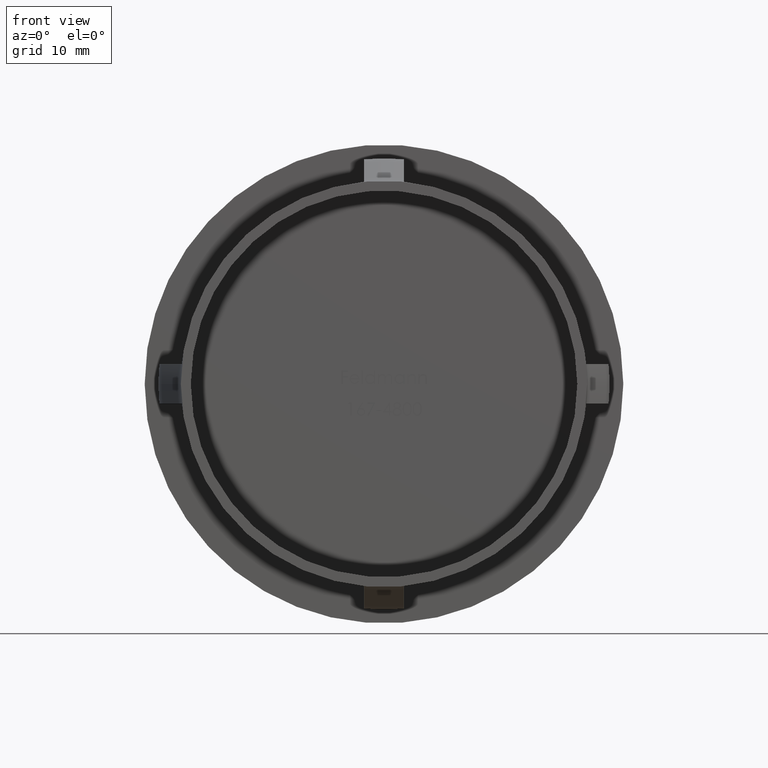
[diagram: clean part render]
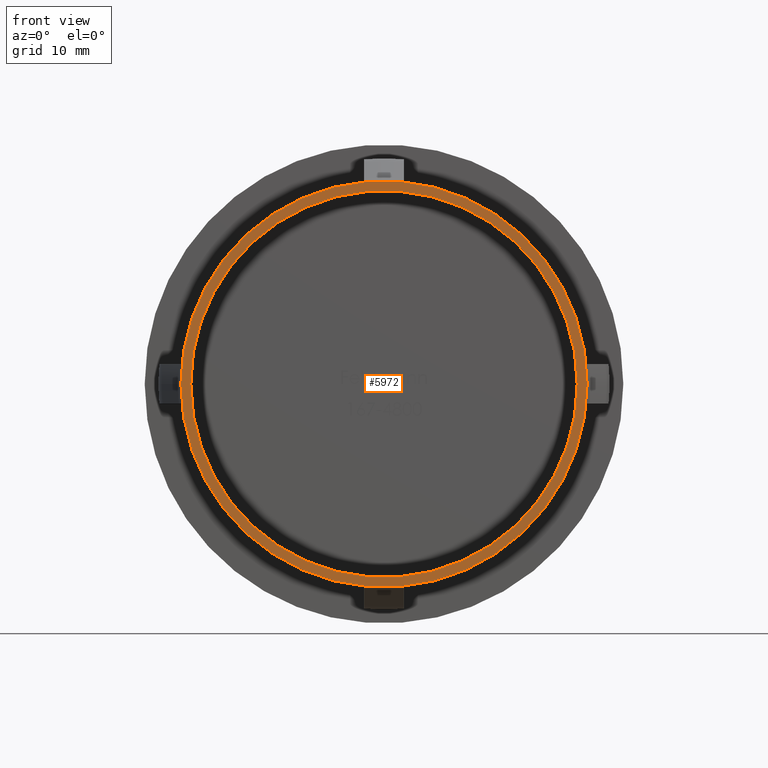
[diagram: same view with one face highlighted and labeled with its STEP entity id]
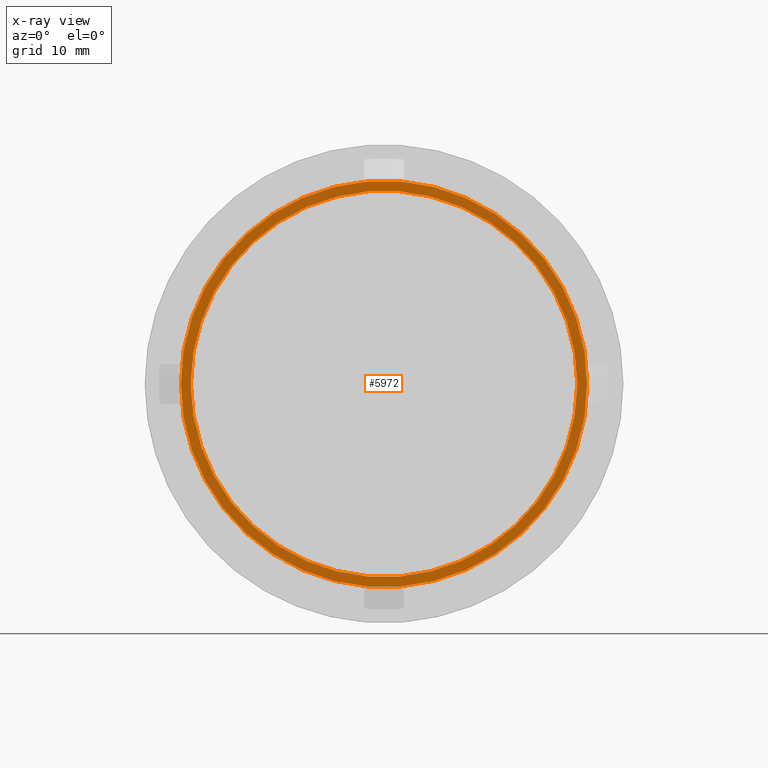
[diagram: x-ray of the same camera — body ghosted, the highlighted face saturated]
A machine part, front view. The second image highlights one B-rep face of the part: STEP entity #5972.
The next image is the same camera in x-ray: the body ghosted, the highlighted face saturated — about 0% of this face is hidden behind the body in this view.
In plain terms, the highlighted planar face has unit normal (-0, 1, 0).
Its self-contained STEP definition (entity closure, byte-faithful):
#326 = DIRECTION ( 'NONE',  ( -1.714505518806297100E-016, 1.000000000000000000, -0.0000000000000000000 ) ) ;
#674 = CARTESIAN_POINT ( 'NONE',  ( 19.50000000000000400, -1.261611902813349400E-016, 2.388061258337339300E-015 ) ) ;
#960 = CARTESIAN_POINT ( 'NONE',  ( 19.50000000000000400, -8.572527594031492900E-017, 0.0000000000000000000 ) ) ;
#1007 = DIRECTION ( 'NONE',  ( -1.000000000000000000, -1.714505518806297600E-016, 0.0000000000000000000 ) ) ;
#1133 = AXIS2_PLACEMENT_3D ( 'NONE', #2758, #6013, #10841 ) ;
#2023 = VERTEX_POINT ( 'NONE', #674 ) ;
#2199 = PLANE ( 'NONE',  #4953 ) ;
#2758 = CARTESIAN_POINT ( 'NONE',  ( 4.589976203204287100E-015, -3.469446951953614200E-015, 0.0000000000000000000 ) ) ;
#3082 = CIRCLE ( 'NONE', #1133, 19.50000000000000000 ) ;
#3129 = CARTESIAN_POINT ( 'NONE',  ( 20.50000000000000400, 4.528936159929513800E-017, 2.510525938252074500E-015 ) ) ;
#3583 = VERTEX_POINT ( 'NONE', #14230 ) ;
#3716 = CARTESIAN_POINT ( 'NONE',  ( 4.589976203204287100E-015, -3.469446951953614200E-015, 0.0000000000000000000 ) ) ;
#4951 = EDGE_LOOP ( 'NONE', ( #13468, #10838 ) ) ;
#4953 = AXIS2_PLACEMENT_3D ( 'NONE', #960, #13597, #9074 ) ;
#5392 = EDGE_LOOP ( 'NONE', ( #5976, #9189 ) ) ;
#5591 = CIRCLE ( 'NONE', #12104, 20.50000000000000000 ) ;
#5767 = CIRCLE ( 'NONE', #11714, 20.50000000000000000 ) ;
#5972 = ADVANCED_FACE ( 'NONE', ( #9454, #7107 ), #2199, .F. ) ;
#5976 = ORIENTED_EDGE ( 'NONE', *, *, #12160, .T. ) ;
#6013 = DIRECTION ( 'NONE',  ( -1.714505518806297100E-016, 1.000000000000000000, -0.0000000000000000000 ) ) ;
#7107 = FACE_OUTER_BOUND ( 'NONE', #4951, .T. ) ;
#7733 = CARTESIAN_POINT ( 'NONE',  ( 4.589976203204287100E-015, -3.469446951953614200E-015, 0.0000000000000000000 ) ) ;
#7747 = VERTEX_POINT ( 'NONE', #3129 ) ;
#7832 = DIRECTION ( 'NONE',  ( -1.000000000000000000, -1.714505518806296900E-016, 0.0000000000000000000 ) ) ;
#7945 = DIRECTION ( 'NONE',  ( -1.714505518806297100E-016, 1.000000000000000000, -0.0000000000000000000 ) ) ;
#8492 = CIRCLE ( 'NONE', #8610, 19.50000000000000000 ) ;
#8610 = AXIS2_PLACEMENT_3D ( 'NONE', #7733, #13641, #7832 ) ;
#9074 = DIRECTION ( 'NONE',  ( -1.000000000000000000, -1.714505518806297100E-016, 0.0000000000000000000 ) ) ;
#9189 = ORIENTED_EDGE ( 'NONE', *, *, #11990, .T. ) ;
#9454 = FACE_BOUND ( 'NONE', #5392, .T. ) ;
#10514 = VERTEX_POINT ( 'NONE', #13861 ) ;
#10838 = ORIENTED_EDGE ( 'NONE', *, *, #12225, .F. ) ;
#10841 = DIRECTION ( 'NONE',  ( -1.000000000000000000, -1.714505518806296900E-016, 0.0000000000000000000 ) ) ;
#10859 = DIRECTION ( 'NONE',  ( -1.000000000000000000, -1.714505518806297600E-016, 0.0000000000000000000 ) ) ;
#11003 = EDGE_CURVE ( 'NONE', #3583, #7747, #5591, .T. ) ;
#11714 = AXIS2_PLACEMENT_3D ( 'NONE', #3716, #326, #10859 ) ;
#11990 = EDGE_CURVE ( 'NONE', #2023, #10514, #3082, .T. ) ;
#12104 = AXIS2_PLACEMENT_3D ( 'NONE', #14914, #7945, #1007 ) ;
#12160 = EDGE_CURVE ( 'NONE', #10514, #2023, #8492, .T. ) ;
#12225 = EDGE_CURVE ( 'NONE', #7747, #3583, #5767, .T. ) ;
#13468 = ORIENTED_EDGE ( 'NONE', *, *, #11003, .F. ) ;
#13597 = DIRECTION ( 'NONE',  ( -1.714505518806297100E-016, 1.000000000000000000, 0.0000000000000000000 ) ) ;
#13641 = DIRECTION ( 'NONE',  ( -1.714505518806297100E-016, 1.000000000000000000, -0.0000000000000000000 ) ) ;
#13861 = CARTESIAN_POINT ( 'NONE',  ( -19.49999999999999600, -6.812732713625892700E-015, 0.0000000000000000000 ) ) ;
#14230 = CARTESIAN_POINT ( 'NONE',  ( -20.49999999999999600, -6.984183265506524500E-015, 0.0000000000000000000 ) ) ;
#14914 = CARTESIAN_POINT ( 'NONE',  ( 4.589976203204287100E-015, -3.469446951953614200E-015, 0.0000000000000000000 ) ) ;